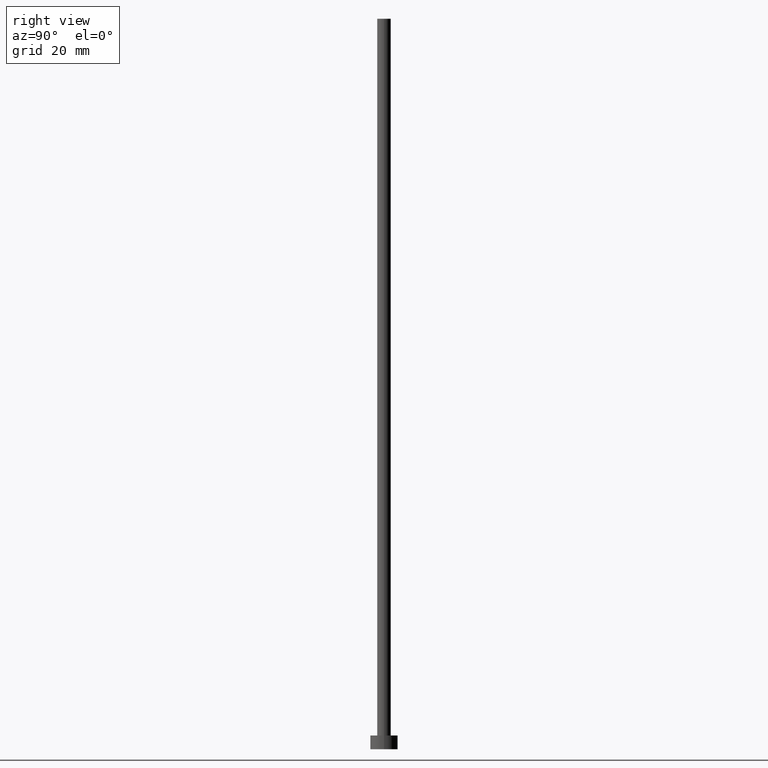
[diagram: clean part render]
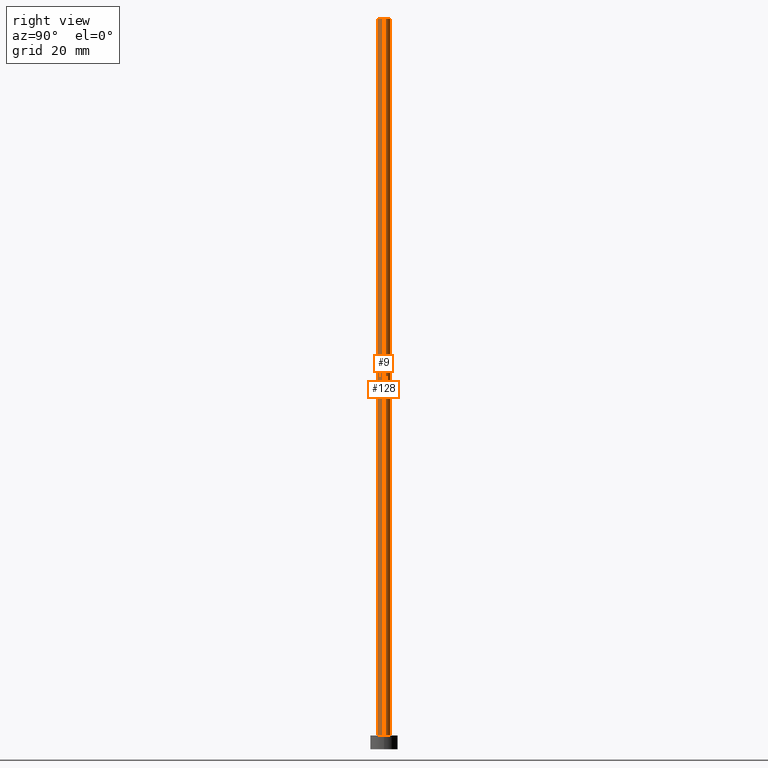
[diagram: same view with one multi-face feature highlighted, each face labeled with its STEP entity id]
A machine part, right view. The highlighted faces form ONE feature: a constant-radius fillet chain: 2 tangent blend faces with common blend radius 1.5 mm. The faces share edges in the B-rep.
Their STEP definitions:
[1] entity #128 (Cylinder):
#2 = DIRECTION ( 'NONE',  ( -1.000000000000000000, 0.000000000000000000, 0.000000000000000000 ) ) ;
#6 = DIRECTION ( 'NONE',  ( 1.000000000000000000, 0.000000000000000000, 0.000000000000000000 ) ) ;
#7 = CYLINDRICAL_SURFACE ( 'NONE', #25, 1.500000000000000222 ) ;
#10 = VERTEX_POINT ( 'NONE', #160 ) ;
#13 = ORIENTED_EDGE ( 'NONE', *, *, #221, .F. ) ;
#14 = EDGE_CURVE ( 'NONE', #197, #10, #119, .T. ) ;
#25 = AXIS2_PLACEMENT_3D ( 'NONE', #58, #87, #2 ) ;
#26 = DIRECTION ( 'NONE',  ( -0.000000000000000000, -0.000000000000000000, -1.000000000000000000 ) ) ;
#39 = DIRECTION ( 'NONE',  ( 1.000000000000000000, 0.000000000000000000, 0.000000000000000000 ) ) ;
#41 = VECTOR ( 'NONE', #166, 1000.000000000000000 ) ;
#43 = CARTESIAN_POINT ( 'NONE',  ( 1.500000000000000222, 1.836970198721030181E-16, 160.0000000000000000 ) ) ;
#58 = CARTESIAN_POINT ( 'NONE',  ( 0.000000000000000000, 0.000000000000000000, 160.0000000000000000 ) ) ;
#69 = AXIS2_PLACEMENT_3D ( 'NONE', #127, #190, #6 ) ;
#87 = DIRECTION ( 'NONE',  ( -0.000000000000000000, -0.000000000000000000, -1.000000000000000000 ) ) ;
#88 = CARTESIAN_POINT ( 'NONE',  ( 1.500000000000000222, 1.836970198721030181E-16, 160.0000000000000000 ) ) ;
#90 = ORIENTED_EDGE ( 'NONE', *, *, #207, .T. ) ;
#92 = VERTEX_POINT ( 'NONE', #88 ) ;
#110 = CARTESIAN_POINT ( 'NONE',  ( -1.500000000000000222, 0.000000000000000000, 160.0000000000000000 ) ) ;
#113 = VECTOR ( 'NONE', #26, 1000.000000000000000 ) ;
#119 = CIRCLE ( 'NONE', #154, 1.500000000000000222 ) ;
#127 = CARTESIAN_POINT ( 'NONE',  ( 0.000000000000000000, 0.000000000000000000, 160.0000000000000000 ) ) ;
#128 = ADVANCED_FACE ( 'NONE', ( #212 ), #7, .T. ) ;
#148 = CARTESIAN_POINT ( 'NONE',  ( -1.500000000000000222, 0.000000000000000000, 160.0000000000000000 ) ) ;
#154 = AXIS2_PLACEMENT_3D ( 'NONE', #254, #239, #39 ) ;
#160 = CARTESIAN_POINT ( 'NONE',  ( -1.500000000000000222, 0.000000000000000000, 3.000000000000000000 ) ) ;
#166 = DIRECTION ( 'NONE',  ( -0.000000000000000000, -0.000000000000000000, -1.000000000000000000 ) ) ;
#171 = LINE ( 'NONE', #148, #41 ) ;
#178 = ORIENTED_EDGE ( 'NONE', *, *, #200, .F. ) ;
#190 = DIRECTION ( 'NONE',  ( 0.000000000000000000, 0.000000000000000000, 1.000000000000000000 ) ) ;
#194 = VERTEX_POINT ( 'NONE', #110 ) ;
#195 = EDGE_LOOP ( 'NONE', ( #13, #90, #249, #178 ) ) ;
#197 = VERTEX_POINT ( 'NONE', #244 ) ;
#200 = EDGE_CURVE ( 'NONE', #194, #10, #171, .T. ) ;
#207 = EDGE_CURVE ( 'NONE', #92, #197, #226, .T. ) ;
#212 = FACE_OUTER_BOUND ( 'NONE', #195, .T. ) ;
#221 = EDGE_CURVE ( 'NONE', #92, #194, #242, .T. ) ;
#226 = LINE ( 'NONE', #43, #113 ) ;
#239 = DIRECTION ( 'NONE',  ( 0.000000000000000000, 0.000000000000000000, 1.000000000000000000 ) ) ;
#242 = CIRCLE ( 'NONE', #69, 1.500000000000000222 ) ;
#244 = CARTESIAN_POINT ( 'NONE',  ( 1.500000000000000222, 1.836970198721030181E-16, 3.000000000000000000 ) ) ;
#249 = ORIENTED_EDGE ( 'NONE', *, *, #14, .T. ) ;
#254 = CARTESIAN_POINT ( 'NONE',  ( 0.000000000000000000, 0.000000000000000000, 3.000000000000000000 ) ) ;
[2] entity #9 (Cylinder):
#9 = ADVANCED_FACE ( 'NONE', ( #73 ), #232, .T. ) ;
#10 = VERTEX_POINT ( 'NONE', #160 ) ;
#16 = ORIENTED_EDGE ( 'NONE', *, *, #20, .T. ) ;
#20 = EDGE_CURVE ( 'NONE', #10, #197, #220, .T. ) ;
#24 = EDGE_CURVE ( 'NONE', #194, #92, #237, .T. ) ;
#26 = DIRECTION ( 'NONE',  ( -0.000000000000000000, -0.000000000000000000, -1.000000000000000000 ) ) ;
#35 = ORIENTED_EDGE ( 'NONE', *, *, #24, .F. ) ;
#41 = VECTOR ( 'NONE', #166, 1000.000000000000000 ) ;
#43 = CARTESIAN_POINT ( 'NONE',  ( 1.500000000000000222, 1.836970198721030181E-16, 160.0000000000000000 ) ) ;
#73 = FACE_OUTER_BOUND ( 'NONE', #234, .T. ) ;
#78 = AXIS2_PLACEMENT_3D ( 'NONE', #136, #94, #253 ) ;
#88 = CARTESIAN_POINT ( 'NONE',  ( 1.500000000000000222, 1.836970198721030181E-16, 160.0000000000000000 ) ) ;
#92 = VERTEX_POINT ( 'NONE', #88 ) ;
#94 = DIRECTION ( 'NONE',  ( -0.000000000000000000, -0.000000000000000000, -1.000000000000000000 ) ) ;
#110 = CARTESIAN_POINT ( 'NONE',  ( -1.500000000000000222, 0.000000000000000000, 160.0000000000000000 ) ) ;
#113 = VECTOR ( 'NONE', #26, 1000.000000000000000 ) ;
#117 = ORIENTED_EDGE ( 'NONE', *, *, #207, .F. ) ;
#136 = CARTESIAN_POINT ( 'NONE',  ( 0.000000000000000000, 0.000000000000000000, 160.0000000000000000 ) ) ;
#137 = DIRECTION ( 'NONE',  ( 0.000000000000000000, 0.000000000000000000, 1.000000000000000000 ) ) ;
#148 = CARTESIAN_POINT ( 'NONE',  ( -1.500000000000000222, 0.000000000000000000, 160.0000000000000000 ) ) ;
#151 = AXIS2_PLACEMENT_3D ( 'NONE', #205, #155, #203 ) ;
#155 = DIRECTION ( 'NONE',  ( 0.000000000000000000, 0.000000000000000000, 1.000000000000000000 ) ) ;
#160 = CARTESIAN_POINT ( 'NONE',  ( -1.500000000000000222, 0.000000000000000000, 3.000000000000000000 ) ) ;
#166 = DIRECTION ( 'NONE',  ( -0.000000000000000000, -0.000000000000000000, -1.000000000000000000 ) ) ;
#171 = LINE ( 'NONE', #148, #41 ) ;
#177 = ORIENTED_EDGE ( 'NONE', *, *, #200, .T. ) ;
#194 = VERTEX_POINT ( 'NONE', #110 ) ;
#197 = VERTEX_POINT ( 'NONE', #244 ) ;
#200 = EDGE_CURVE ( 'NONE', #194, #10, #171, .T. ) ;
#201 = CARTESIAN_POINT ( 'NONE',  ( 0.000000000000000000, 0.000000000000000000, 160.0000000000000000 ) ) ;
#203 = DIRECTION ( 'NONE',  ( 1.000000000000000000, 0.000000000000000000, 0.000000000000000000 ) ) ;
#205 = CARTESIAN_POINT ( 'NONE',  ( 0.000000000000000000, 0.000000000000000000, 3.000000000000000000 ) ) ;
#207 = EDGE_CURVE ( 'NONE', #92, #197, #226, .T. ) ;
#209 = AXIS2_PLACEMENT_3D ( 'NONE', #201, #137, #223 ) ;
#220 = CIRCLE ( 'NONE', #151, 1.500000000000000222 ) ;
#223 = DIRECTION ( 'NONE',  ( 1.000000000000000000, 0.000000000000000000, 0.000000000000000000 ) ) ;
#226 = LINE ( 'NONE', #43, #113 ) ;
#232 = CYLINDRICAL_SURFACE ( 'NONE', #78, 1.500000000000000222 ) ;
#234 = EDGE_LOOP ( 'NONE', ( #117, #35, #177, #16 ) ) ;
#237 = CIRCLE ( 'NONE', #209, 1.500000000000000222 ) ;
#244 = CARTESIAN_POINT ( 'NONE',  ( 1.500000000000000222, 1.836970198721030181E-16, 3.000000000000000000 ) ) ;
#253 = DIRECTION ( 'NONE',  ( -1.000000000000000000, 0.000000000000000000, 0.000000000000000000 ) ) ;